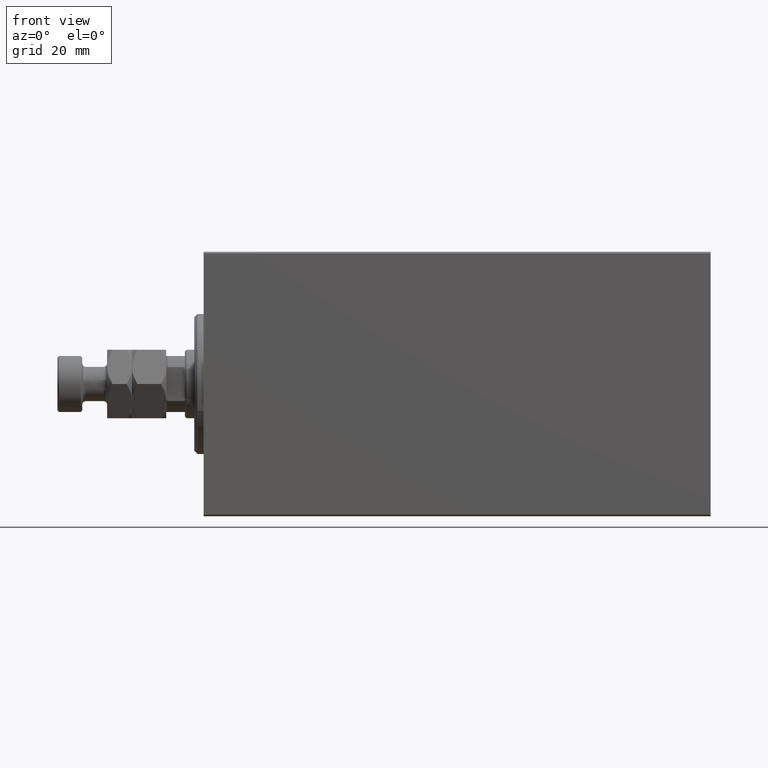
[diagram: clean part render]
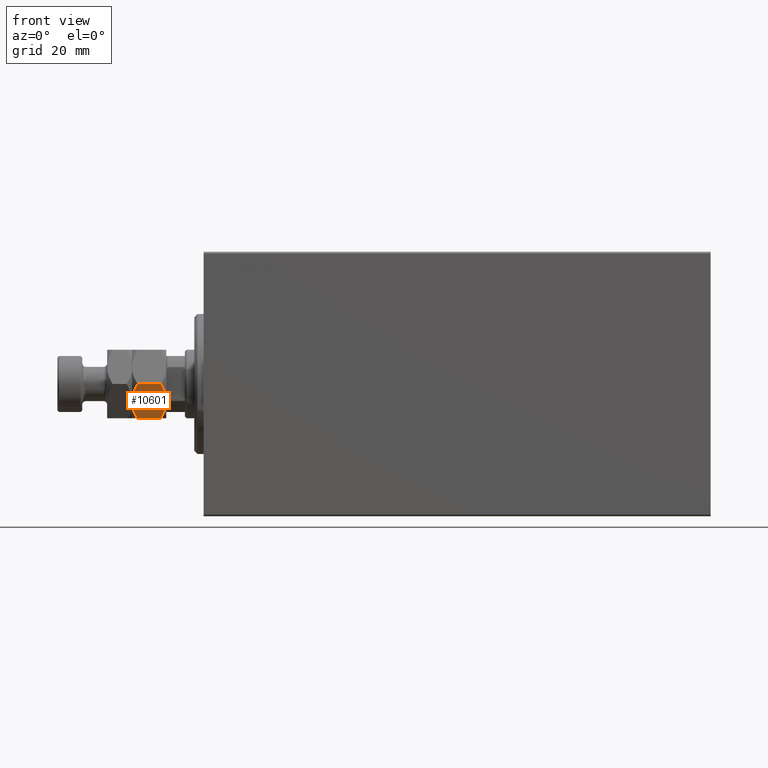
[diagram: same view with one face highlighted and labeled with its STEP entity id]
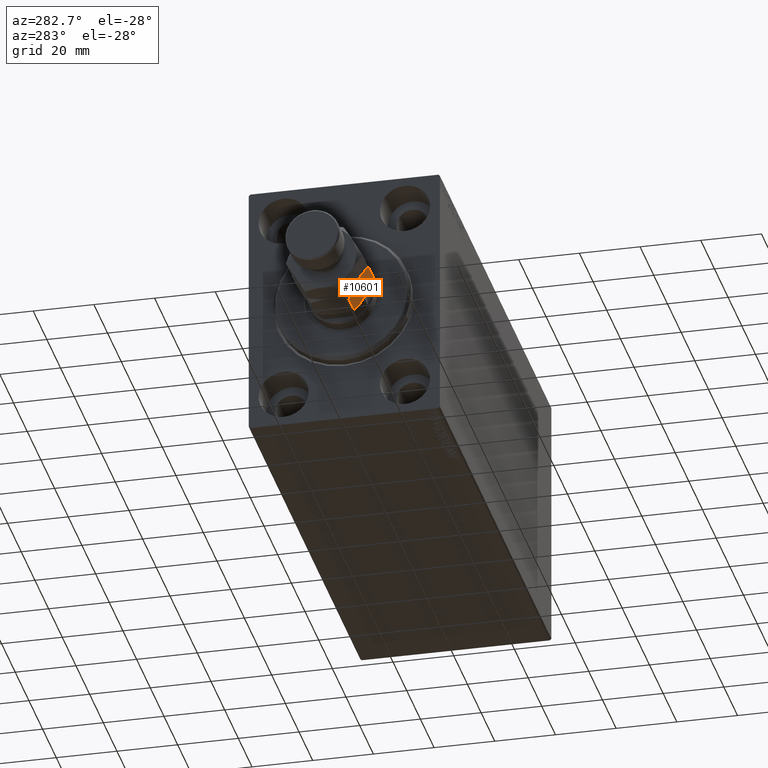
[diagram: same view with one face highlighted and labeled with its STEP entity id]
A machine part, front view. The second image highlights one B-rep face of the part: STEP entity #10601.
A second angle (auxiliary view) of the same face is appended — the face is thin or edge-on in the first view.
In plain terms, the highlighted planar face has unit normal (0, 0.866, 0.5).
Its self-contained STEP definition (entity closure, byte-faithful):
#209 = CARTESIAN_POINT ( 'NONE',  ( -11.00000000000000000, -6.350852961085885262, 11.00000000000000000 ) ) ;
#396 = CARTESIAN_POINT ( 'NONE',  ( -11.00000000000000000, -6.350852961085885262, 9.298294077828238358 ) ) ;
#2940 = ORIENTED_EDGE ( 'NONE', *, *, #26788, .F. ) ;
#3395 = VERTEX_POINT ( 'NONE', #23094 ) ;
#3996 = ORIENTED_EDGE ( 'NONE', *, *, #37133, .F. ) ;
#4165 = VERTEX_POINT ( 'NONE', #18336 ) ;
#5203 = ORIENTED_EDGE ( 'NONE', *, *, #17133, .T. ) ;
#5448 = CARTESIAN_POINT ( 'NONE',  ( -3.115032419653387397, -10.90324111615046832, 0.3282192120904052768 ) ) ;
#6048 = CARTESIAN_POINT ( 'NONE',  ( -5.499999999999999112, -9.526279441628828337, 11.00000000000000000 ) ) ;
#6252 = VECTOR ( 'NONE', #32382, 1000.000000000000000 ) ;
#7555 = CARTESIAN_POINT ( 'NONE',  ( -10.13752086928278295, -6.848805519375901874, 9.796246636118254969 ) ) ;
#9104 = CARTESIAN_POINT ( 'NONE',  ( -4.543329525579421713, -10.07861339756131080, 11.00000000000000355 ) ) ;
#10601 = ADVANCED_FACE ( 'NONE', ( #27772 ), #41753, .F. ) ;
#10637 = DIRECTION ( 'NONE',  ( -0.000000000000000000, -0.000000000000000000, -1.000000000000000000 ) ) ;
#10761 = DIRECTION ( 'NONE',  ( 0.4999999999999998335, 0.8660254037844387076, -0.000000000000000000 ) ) ;
#11216 = CARTESIAN_POINT ( 'NONE',  ( -5.981709287746638459, -9.248164454677157309, 11.00000000000000000 ) ) ;
#11442 = CARTESIAN_POINT ( 'NONE',  ( -5.499999999999999112, -9.526279441628828337, 11.00000000000000000 ) ) ;
#11636 = CARTESIAN_POINT ( 'NONE',  ( -2.056508384864602535E-15, -12.70170592217176342, 1.701705922171757868 ) ) ;
#11905 = CARTESIAN_POINT ( 'NONE',  ( -11.00000000000000000, -6.350852961085885262, 9.298294077828238358 ) ) ;
#12016 = B_SPLINE_CURVE_WITH_KNOTS ( 'NONE', 3,
 ( #11636, #18749, #15991, #5448, #22200, #43310, #19439, #25654 ),
 .UNSPECIFIED., .F., .F.,
 ( 4, 2, 2, 4 ),
 ( 2.544311317621743898E-07, 0.003291871675740028202, 0.004937680298044160379, 0.006583488920348294290 ),
 .UNSPECIFIED. ) ;
#12227 = EDGE_CURVE ( 'NONE', #4165, #32057, #22001, .T. ) ;
#12827 = CARTESIAN_POINT ( 'NONE',  ( -11.00000000000000000, -6.350852961085885262, 1.701705922171762309 ) ) ;
#13290 = CARTESIAN_POINT ( 'NONE',  ( -9.251785468064189999, -7.360185091700237159, 0.7776848045220270400 ) ) ;
#14097 = B_SPLINE_CURVE_WITH_KNOTS ( 'NONE', 3,
 ( #26333, #9104, #15301, #39845, #43763, #18976 ),
 .UNSPECIFIED., .F., .F.,
 ( 4, 2, 4 ),
 ( 0.006583488920348300362, 0.009852050593448711396, 0.01312061226654912330 ),
 .UNSPECIFIED. ) ;
#14888 = CARTESIAN_POINT ( 'NONE',  ( -9.255521992360788985, -7.358027808391763180, 10.21937661245322282 ) ) ;
#15301 = CARTESIAN_POINT ( 'NONE',  ( -3.602926119288152318, -10.62155555733041901, 10.83109139163524581 ) ) ;
#15738 = EDGE_CURVE ( 'NONE', #18222, #3395, #14097, .T. ) ;
#15991 = CARTESIAN_POINT ( 'NONE',  ( -1.744478007639210349, -11.69453107486588550, 0.7806233875467739614 ) ) ;
#17133 = EDGE_CURVE ( 'NONE', #18609, #32057, #18386, .T. ) ;
#17530 = AXIS2_PLACEMENT_3D ( 'NONE', #209, #10761, #21325 ) ;
#18222 = VERTEX_POINT ( 'NONE', #6048 ) ;
#18336 = CARTESIAN_POINT ( 'NONE',  ( -5.499999999999998224, -9.526279441628826561, 0.000000000000000000 ) ) ;
#18386 = LINE ( 'NONE', #22759, #6252 ) ;
#18609 = VERTEX_POINT ( 'NONE', #396 ) ;
#18749 = CARTESIAN_POINT ( 'NONE',  ( -0.8624791307172157140, -12.20375336388174503, 1.203753363881743033 ) ) ;
#18976 = CARTESIAN_POINT ( 'NONE',  ( -1.735608132212364507E-15, -12.70170592217176342, 9.298294077828241910 ) ) ;
#19439 = CARTESIAN_POINT ( 'NONE',  ( -5.018290712253360653, -9.804394428580497589, 4.082698805765729113E-16 ) ) ;
#21325 = DIRECTION ( 'NONE',  ( -0.8660254037844387076, 0.4999999999999998335, 0.000000000000000000 ) ) ;
#21416 = CARTESIAN_POINT ( 'NONE',  ( -6.456670474420573846, -8.973945485696338764, 4.698209414103847288E-16 ) ) ;
#22001 = B_SPLINE_CURVE_WITH_KNOTS ( 'NONE', 3,
 ( #38604, #21416, #32876, #13290, #44498, #12827 ),
 .UNSPECIFIED., .F., .F.,
 ( 4, 2, 4 ),
 ( 0.006583488920348294290, 0.009852050593448706192, 0.01312061226654912156 ),
 .UNSPECIFIED. ) ;
#22200 = CARTESIAN_POINT ( 'NONE',  ( -3.579894028994819788, -10.63485314086127254, 0.2081220748670717380 ) ) ;
#22759 = CARTESIAN_POINT ( 'NONE',  ( -11.00000000000000000, -6.350852961085885262, 11.00000000000000000 ) ) ;
#23094 = CARTESIAN_POINT ( 'NONE',  ( -1.735608132212364507E-15, -12.70170592217176342, 9.298294077828241910 ) ) ;
#25654 = CARTESIAN_POINT ( 'NONE',  ( -5.499999999999998224, -9.526279441628826561, 0.000000000000000000 ) ) ;
#25919 = CARTESIAN_POINT ( 'NONE',  ( -7.884967580346610383, -8.149317767107177701, 10.67178078790959184 ) ) ;
#26333 = CARTESIAN_POINT ( 'NONE',  ( -5.499999999999999112, -9.526279441628828337, 11.00000000000000000 ) ) ;
#26788 = EDGE_CURVE ( 'NONE', #44370, #4165, #12016, .T. ) ;
#27095 = CARTESIAN_POINT ( 'NONE',  ( -11.00000000000000000, -6.350852961085885262, 1.701705922171762309 ) ) ;
#27772 = FACE_OUTER_BOUND ( 'NONE', #43914, .T. ) ;
#30772 = CARTESIAN_POINT ( 'NONE',  ( -2.056508384864602535E-15, -12.70170592217176342, 1.701705922171757868 ) ) ;
#30956 = VECTOR ( 'NONE', #10637, 1000.000000000000000 ) ;
#32057 = VERTEX_POINT ( 'NONE', #27095 ) ;
#32382 = DIRECTION ( 'NONE',  ( -0.000000000000000000, -0.000000000000000000, -1.000000000000000000 ) ) ;
#32876 = CARTESIAN_POINT ( 'NONE',  ( -7.397073880711848126, -8.431003325927232339, 0.1689086083647580172 ) ) ;
#35752 = CARTESIAN_POINT ( 'NONE',  ( -6.470625887979892354, -8.965888323921213043, 10.95634070256487647 ) ) ;
#36049 = ORIENTED_EDGE ( 'NONE', *, *, #40957, .F. ) ;
#37133 = EDGE_CURVE ( 'NONE', #18609, #18222, #45030, .T. ) ;
#37713 = CARTESIAN_POINT ( 'NONE',  ( -2.168404344971008868E-15, -12.70170592217176342, 11.00000000000000000 ) ) ;
#38604 = CARTESIAN_POINT ( 'NONE',  ( -5.499999999999998224, -9.526279441628826561, 0.000000000000000000 ) ) ;
#39845 = CARTESIAN_POINT ( 'NONE',  ( -1.748214531935809335, -11.69237379155741330, 10.22231519547797518 ) ) ;
#40304 = ORIENTED_EDGE ( 'NONE', *, *, #15738, .F. ) ;
#40957 = EDGE_CURVE ( 'NONE', #3395, #44370, #42073, .T. ) ;
#41753 = PLANE ( 'NONE',  #17530 ) ;
#41990 = ORIENTED_EDGE ( 'NONE', *, *, #12227, .F. ) ;
#42073 = LINE ( 'NONE', #37713, #30956 ) ;
#42876 = CARTESIAN_POINT ( 'NONE',  ( -7.420105971005178880, -8.417705742396378810, 10.79187792513292798 ) ) ;
#43310 = CARTESIAN_POINT ( 'NONE',  ( -4.529374112020106757, -10.08667055933643653, 0.04365929743512406147 ) ) ;
#43763 = CARTESIAN_POINT ( 'NONE',  ( -0.8614806024966442655, -12.20432986441868728, 9.795670135581394433 ) ) ;
#43914 = EDGE_LOOP ( 'NONE', ( #2940, #36049, #40304, #3996, #5203, #41990 ) ) ;
#44370 = VERTEX_POINT ( 'NONE', #30772 ) ;
#44498 = CARTESIAN_POINT ( 'NONE',  ( -10.13851939750335696, -6.848229018838964954, 1.204329864418606011 ) ) ;
#45030 = B_SPLINE_CURVE_WITH_KNOTS ( 'NONE', 3,
 ( #11905, #7555, #14888, #25919, #42876, #35752, #11216, #11442 ),
 .UNSPECIFIED., .F., .F.,
 ( 4, 2, 2, 4 ),
 ( 2.544311317614349830E-07, 0.003291871675740028636, 0.004937680298044163849, 0.006583488920348300362 ),
 .UNSPECIFIED. ) ;